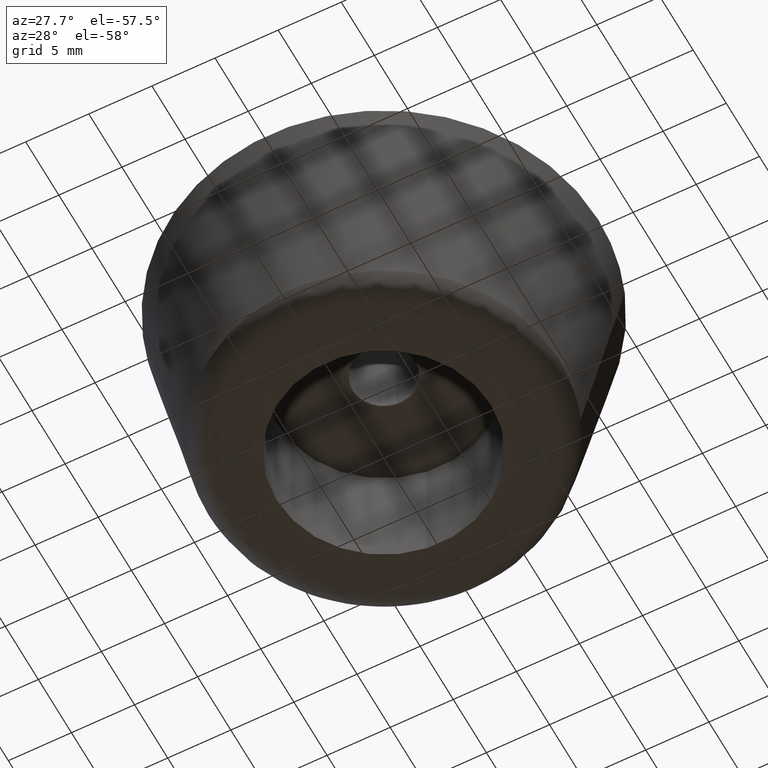
[diagram: clean part render]
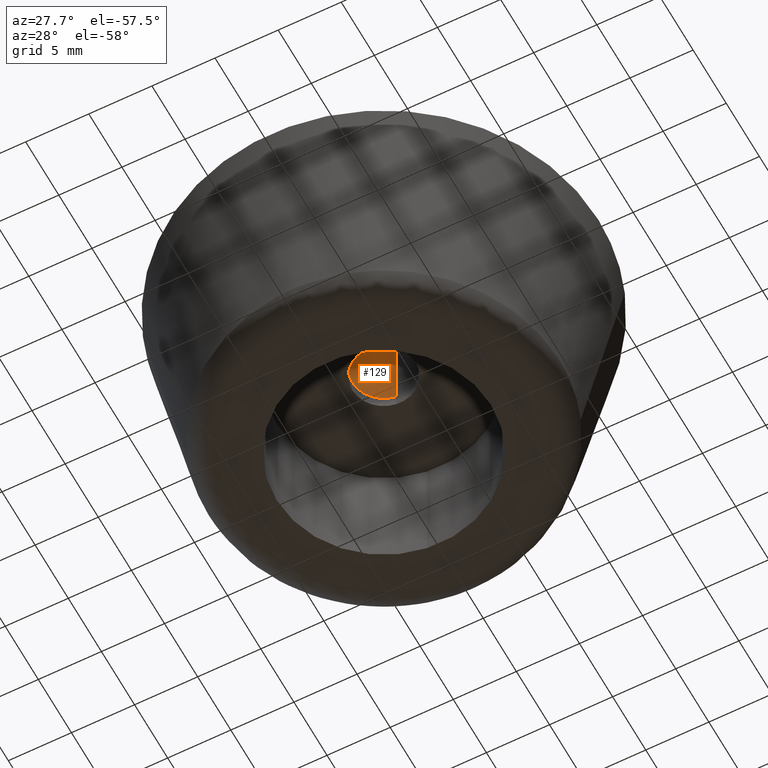
[diagram: same view with one face highlighted and labeled with its STEP entity id]
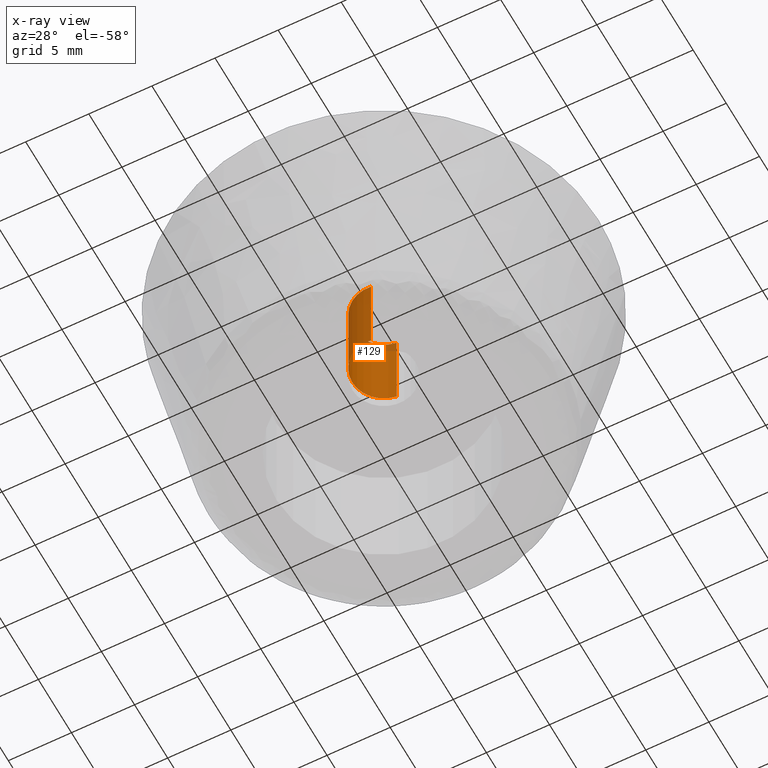
[diagram: x-ray of the same camera — body ghosted, the highlighted face saturated]
A machine part, auxiliary view. The second image highlights one B-rep face of the part: STEP entity #129.
The next image is the same camera in x-ray: the body ghosted, the highlighted face saturated — about 44% of this face is hidden behind the body in this view.
In plain terms, the highlighted cylindrical surface (edge-blend (fillet) strip) has radius 2.5 mm, axis along (0, 0, 1).
Its self-contained STEP definition (entity closure, byte-faithful):
#129=ADVANCED_FACE('',(#309),#308,.F.);
#308=CYLINDRICAL_SURFACE('',#486,2.50000000000E+000);
#309=FACE_OUTER_BOUND('',#487,.T.);
#483=CARTESIAN_POINT('',(1.38307842812E-013,1.37826535470E-014,1.81750000000E+001));
#484=DIRECTION('',(3.75406924024E-014,3.74673561699E-015,1.00000000000E+000));
#485=DIRECTION('',(1.18034234657E-001,-9.93009526364E-001,-7.10542735762E-016));
#486=AXIS2_PLACEMENT_3D('',#483,#484,#485);
#487=EDGE_LOOP('',(#602,#603,#604,#605,#606,#607));
#602=ORIENTED_EDGE('',*,*,#639,.F.);
#603=ORIENTED_EDGE('',*,*,#641,.F.);
#604=ORIENTED_EDGE('',*,*,#674,.F.);
#605=ORIENTED_EDGE('',*,*,#651,.T.);
#606=ORIENTED_EDGE('',*,*,#653,.T.);
#607=ORIENTED_EDGE('',*,*,#675,.T.);
#639=EDGE_CURVE('',#821,#822,#823,.T.);
#641=EDGE_CURVE('',#829,#821,#836,.T.);
#651=EDGE_CURVE('',#905,#906,#907,.T.);
#653=EDGE_CURVE('',#906,#913,#920,.T.);
#674=EDGE_CURVE('',#905,#829,#1060,.T.);
#675=EDGE_CURVE('',#913,#822,#1066,.T.);
#821=VERTEX_POINT('',#1177);
#822=VERTEX_POINT('',#1178);
#823=CIRCLE('',#1182,2.50000000000E+000);
#829=VERTEX_POINT('',#1183);
#836=CIRCLE('',#1191,2.50000000000E+000);
#905=VERTEX_POINT('',#1237);
#906=VERTEX_POINT('',#1238);
#907=CIRCLE('',#1242,2.50000000000E+000);
#913=VERTEX_POINT('',#1243);
#920=CIRCLE('',#1251,2.50000000000E+000);
#1060=(BOUNDED_CURVE() B_SPLINE_CURVE(1,(#1338,#1339),.UNSPECIFIED.,.F.,.F.) B_SPLINE_CURVE_WITH_KNOTS((2,2),(8.33333320912E-002,9.16666664070E-001),.UNSPECIFIED.) CURVE() GEOMETRIC_REPRESENTATION_ITEM() RATIONAL_B_SPLINE_CURVE((1.00000000000E+000,1.00000000000E+000)) REPRESENTATION_ITEM('') );
#1066=(BOUNDED_CURVE() B_SPLINE_CURVE(1,(#1340,#1341),.UNSPECIFIED.,.F.,.F.) B_SPLINE_CURVE_WITH_KNOTS((2,2),(8.33333333334E-002,9.16666666667E-001),.UNSPECIFIED.) CURVE() GEOMETRIC_REPRESENTATION_ITEM() RATIONAL_B_SPLINE_CURVE((7.50000000000E-001,7.50000000000E-001)) REPRESENTATION_ITEM('') );
#1177=CARTESIAN_POINT('',(-2.50000000000E+000,0.00000000000E+000,1.80000000000E+001));
#1178=CARTESIAN_POINT('',(-2.95514653005E-001,2.48247277726E+000,1.80000000000E+001));
#1179=CARTESIAN_POINT('',(3.10862446895E-015,1.77635683940E-015,1.80000000000E+001));
#1180=DIRECTION('',(3.32039198475E-015,6.11903677810E-015,-1.00000000000E+000));
#1181=DIRECTION('',(-1.00000000000E+000,-3.46944695195E-016,-3.32039198475E-015));
#1182=AXIS2_PLACEMENT_3D('',#1179,#1180,#1181);
#1183=CARTESIAN_POINT('',(2.95084678798E-001,-2.48252392382E+000,1.80000000000E+001));
#1188=CARTESIAN_POINT('',(3.10862446895E-015,1.77635683940E-015,1.80000000000E+001));
#1189=DIRECTION('',(3.32039198475E-015,6.11903677810E-015,-1.00000000000E+000));
#1190=DIRECTION('',(-1.00000000000E+000,-3.46944695195E-016,-3.32039198475E-015));
#1191=AXIS2_PLACEMENT_3D('',#1188,#1189,#1190);
#1237=CARTESIAN_POINT('',(2.95084678797E-001,-2.48252392382E+000,1.10000000000E+001));
#1238=CARTESIAN_POINT('',(-2.50000000000E+000,0.00000000000E+000,1.10000000000E+001));
#1239=CARTESIAN_POINT('',(3.10862446895E-015,1.77635683940E-015,1.10000000000E+001));
#1240=DIRECTION('',(6.59388142750E-014,9.26891707004E-015,-1.00000000000E+000));
#1241=DIRECTION('',(-1.00000000000E+000,-3.46944695195E-016,-6.59388142750E-014));
#1242=AXIS2_PLACEMENT_3D('',#1239,#1240,#1241);
#1243=CARTESIAN_POINT('',(-2.95514653005E-001,2.48247277726E+000,1.10000000000E+001));
#1248=CARTESIAN_POINT('',(3.10862446895E-015,1.77635683940E-015,1.10000000000E+001));
#1249=DIRECTION('',(6.59388142750E-014,9.26891707004E-015,-1.00000000000E+000));
#1250=DIRECTION('',(-1.00000000000E+000,-3.46944695195E-016,-6.59388142750E-014));
#1251=AXIS2_PLACEMENT_3D('',#1248,#1249,#1250);
#1338=CARTESIAN_POINT('',(2.95085586642E-001,-2.48252381591E+000,1.09999999896E+001));
#1339=CARTESIAN_POINT('',(2.95085586642E-001,-2.48252381591E+000,1.79999999782E+001));
#1340=CARTESIAN_POINT('',(-2.95085586642E-001,2.48252381591E+000,1.10000000000E+001));
#1341=CARTESIAN_POINT('',(-2.95085586642E-001,2.48252381591E+000,1.80000000000E+001));